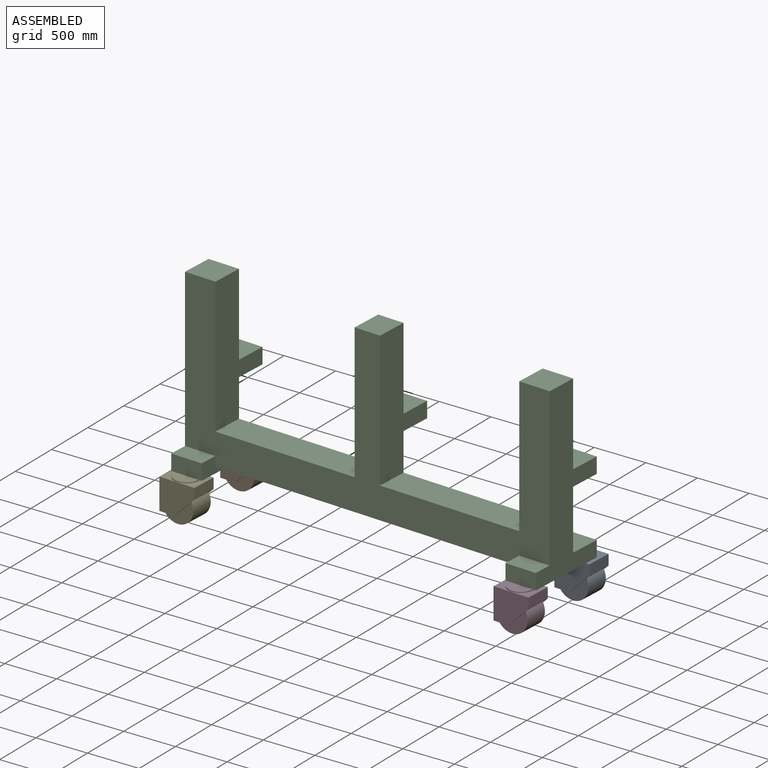
[diagram: assembled view]
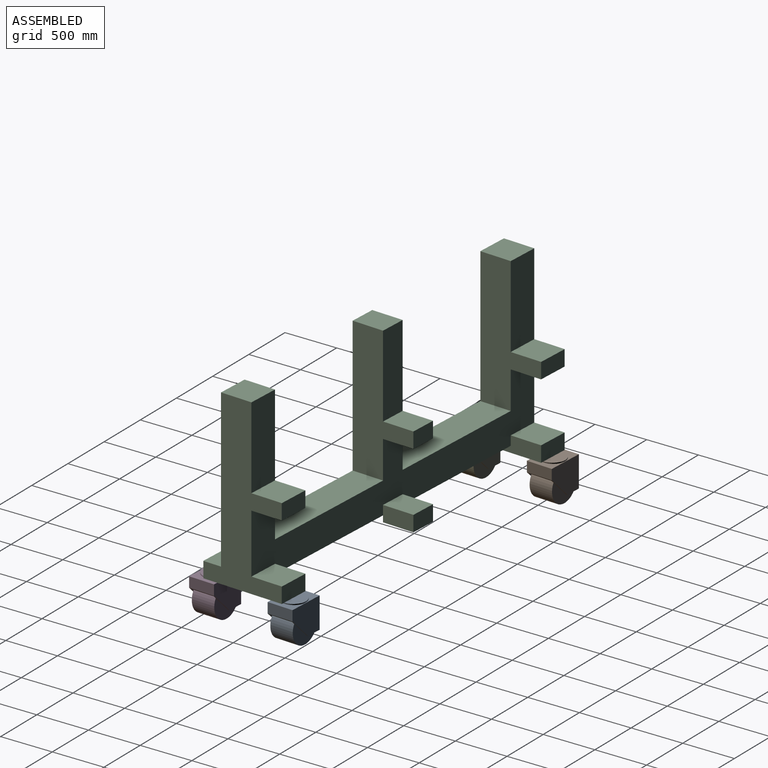
[diagram: assembled view, second angle]
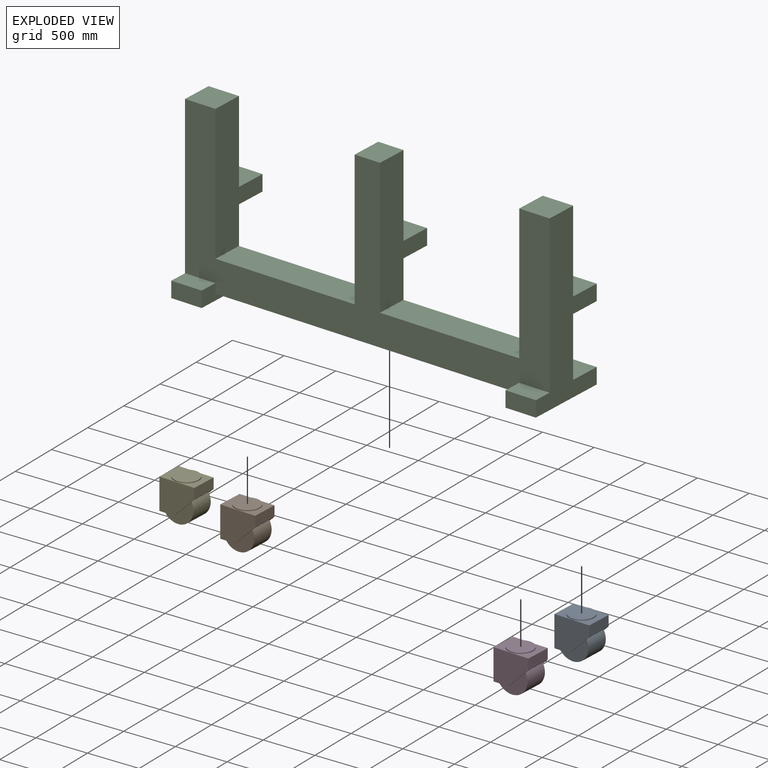
[diagram: exploded view]
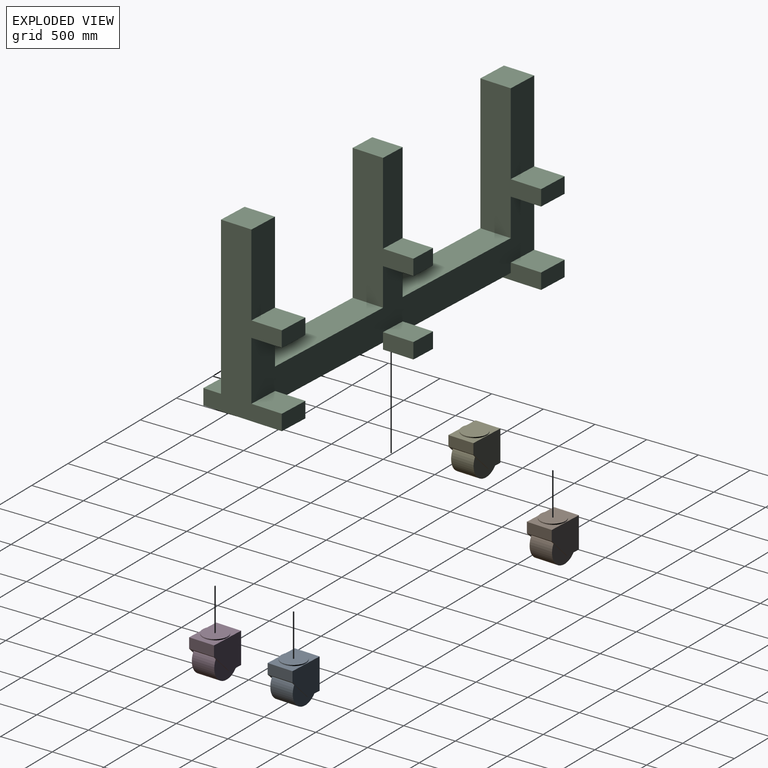
[diagram: exploded view, second angle]
ASSEMBLY  parts=5 mates=4
PART A: 17 faces, bbox 350x250x378.8 mm
  f0: plane 325x287.5mm, normal (0,1,0), area 26670mm2, adj f2,f8,f9,f10,f11,f12
  f1: plane 325x287.5mm, normal (0,-1,0), area 26670mm2, adj f2,f8,f9,f10,f11,f12
  f2: plane 250x150mm, normal (0,0,-1), area 6562.5mm2, adj f0,f1,f5,f6,f7,f10,f11,f13
  f3: plane 250x100mm, normal (1,0,0), area 25000mm2, adj f4,f6,f7,f11
  f4: plane 350x250mm, normal (0,0,1), area 42261.1mm2, adj f3,f5,f6,f7,f15
  f5: plane 300x250mm, normal (-1,0,0), area 75000mm2, adj f2,f4,f6,f7
  f6: plane 350x300mm, normal (0,-1,0), area 85000mm2, adj f2,f3,f4,f5,f11
  f7: plane 350x300mm, normal (0,1,0), area 85000mm2, adj f2,f3,f4,f5,f11
  f8: plane 225x100mm, normal (-1,0,0), area 22500mm2, adj f0,f1,f9,f11
  f9: plane 325x225mm, normal (0,0,-1), area 73125mm2, adj f0,f1,f8,f10
  f10: plane 287.5x225mm, normal (1,0,0), area 64687.5mm2, adj f0,f1,f2,f9
  f11: plane 250x200mm, normal (0.71,0,-0.71), area 11048.5mm2, adj f0,f1,f2,f3,f6,f7,f8,f13
  f12: cylinder r=156.31mm len=312.63mm, axis (0,1,0), area 220982.1mm2, adj f0,f1,f13,f14
  f13: plane 285.84x231.08mm, normal (0,-1,0), area 27571.4mm2, adj f2,f11,f12
  f14: plane 285.84x231.08mm, normal (0,1,0), area 27571.4mm2, adj f2,f11,f12
  f15: cylinder r=120mm len=240mm, axis (0,0,-1), area 7539.8mm2, adj f4,f16
  f16: plane 240x240mm, normal (0,0,1), area 45238.9mm2, adj f15
PART B: same geometry as A
PART C: 44 faces, bbox 3657.6x1676.4x787.4 mm
  f0: plane 3657.6x668.32mm, normal (0,0,-1), area 1349873.6mm2, adj f4,f5,f6,f8,f9,f10,f12,f16
  f1: plane 794.64x304.8mm, normal (0,0,-1), area 242206.4mm2, adj f8,f22,f23,f42
  f2: plane 794.64x254mm, normal (0,0,-1), area 201838.6mm2, adj f24,f25,f26,f39
  f3: plane 794.64x304.8mm, normal (0,0,-1), area 242206.4mm2, adj f9,f27,f28,f36
  f4: plane 1397x304.8mm, normal (0,1,0), area 425805.6mm2, adj f0,f7,f25,f27
  f5: plane 1397x304.8mm, normal (0,1,0), area 425805.6mm2, adj f0,f7,f22,f24
  f6: plane 3048x304.8mm, normal (0,-1,0), area 929030.4mm2, adj f0,f7,f12,f17,f29
  f7: plane 3657.6x1615.36mm, normal (0,0,1), area 2190943.5mm2, adj f4,f5,f6,f8,f9,f12,f15,f17
  f8: plane 1676.4x787.4mm, normal (-1,0,0), area 630966.5mm2, adj f0,f1,f7,f10,f11,f13,f14,f15
  f9: plane 1676.4x787.4mm, normal (1,0,0), area 630966.5mm2, adj f0,f3,f7,f16,f18,f19,f20,f21
  f10: plane 304.8x304.8mm, normal (0,1,0), area 92903mm2, adj f0,f8,f11,f12
  f11: plane 304.8x152.4mm, normal (0,0,-1), area 46451.5mm2, adj f8,f10,f12,f14
  f12: plane 787.4x152.4mm, normal (1,0,0), area 92152.7mm2, adj f0,f6,f7,f10,f11,f13,f14,f15
  f13: plane 304.8x152.4mm, normal (0,0,1), area 46451.5mm2, adj f8,f12,f14,f15
  f14: plane 787.4x304.8mm, normal (0,-1,0), area 239999.5mm2, adj f8,f11,f12,f13
  f15: plane 304.8x177.8mm, normal (0,1,0), area 54193.4mm2, adj f7,f8,f12,f13
  f16: plane 304.8x304.8mm, normal (0,1,0), area 92903mm2, adj f0,f9,f17,f18
  f17: plane 787.4x152.4mm, normal (-1,0,0), area 92152.7mm2, adj f0,f6,f7,f16,f18,f19,f20,f21
  f18: plane 304.8x152.4mm, normal (0,0,-1), area 46451.5mm2, adj f9,f16,f17,f20
  f19: plane 304.8x152.4mm, normal (0,0,1), area 46451.5mm2, adj f9,f17,f20,f21
  f20: plane 787.4x304.8mm, normal (0,-1,0), area 239999.5mm2, adj f9,f17,f18,f19
  f21: plane 304.8x177.8mm, normal (0,1,0), area 54193.4mm2, adj f7,f9,f17,f19
  f22: plane 1310.56x609.6mm, normal (1,0,0), area 445910.7mm2, adj f0,f1,f5,f7,f23,f41,f42,f43
  f23: plane 304.8x304.8mm, normal (0,1,0), area 92903mm2, adj f1,f7,f8,f22
  f24: plane 1310.56x609.6mm, normal (-1,0,0), area 445910.7mm2, adj f0,f2,f5,f7,f26,f38,f39,f40
  f25: plane 1310.56x609.6mm, normal (1,0,0), area 445910.7mm2, adj f0,f2,f4,f7,f26,f38,f39,f40
  f26: plane 304.8x254mm, normal (0,1,0), area 77419.2mm2, adj f2,f7,f24,f25
  f27: plane 1310.56x609.6mm, normal (-1,0,0), area 445910.7mm2, adj f0,f3,f4,f7,f28,f35,f36,f37
  f28: plane 304.8x304.8mm, normal (0,1,0), area 92903mm2, adj f3,f7,f9,f27
  f29: plane 254x61.04mm, normal (0,0,1), area 15503.7mm2, adj f6,f30,f32,f33
  f30: plane 304.8x152.4mm, normal (1,0,0), area 46451.5mm2, adj f0,f29,f31,f33,f34
  f31: plane 304.8x254mm, normal (0,1,0), area 77419.2mm2, adj f0,f30,f32,f34
  f32: plane 304.8x152.4mm, normal (-1,0,0), area 46451.5mm2, adj f0,f29,f31,f33,f34
  f33: plane 304.8x254mm, normal (0,-1,0), area 77419.2mm2, adj f29,f30,f32,f34
  f34: plane 254x152.4mm, normal (0,0,-1), area 38709.6mm2, adj f30,f31,f32,f33
  f35: plane 304.8x304.8mm, normal (0,-1,0), area 92903mm2, adj f0,f9,f27,f37
  f36: plane 304.8x304.8mm, normal (0,1,0), area 92903mm2, adj f3,f9,f27,f37
  f37: plane 304.8x152.4mm, normal (0,0,-1), area 46451.5mm2, adj f9,f27,f35,f36
  f38: plane 304.8x254mm, normal (0,-1,0), area 77419.2mm2, adj f0,f24,f25,f40
  f39: plane 304.8x254mm, normal (0,1,0), area 77419.2mm2, adj f2,f24,f25,f40
  f40: plane 254x152.4mm, normal (0,0,-1), area 38709.6mm2, adj f24,f25,f38,f39
  f41: plane 304.8x304.8mm, normal (0,-1,0), area 92903mm2, adj f0,f8,f22,f43
  f42: plane 304.8x304.8mm, normal (0,1,0), area 92903mm2, adj f1,f8,f22,f43
  f43: plane 304.8x152.4mm, normal (0,0,-1), area 46451.5mm2, adj f8,f22,f41,f42
PART D: same geometry as A
PART E: same geometry as A
PLACE A rot(axis=(0,0,-1),2.8deg) t=(1257.95,-263.81,-635.94)mm
PLACE B rot(axis=(0,0,-1),2.8deg) t=(-2090.83,-99.6,-635.94)mm
PLACE C rot(axis=(1,-0.02,-0.02),90deg) t=(-445.33,-610.6,-323.54)mm
PLACE D rot(axis=(0,0,-1),2.8deg) t=(1219.38,-1050.26,-635.94)mm
PLACE E rot(axis=(0,0,-1),2.8deg) t=(-2129.39,-886.06,-635.94)mm
MATE fastened C.f20 <-> D.f15  axis (0,0,-1) through (1213.26,-1175.11,-475.94)mm
MATE fastened B.f15 <-> C.f14  axis (0,0,1) through (-2096.95,-224.45,-475.94)mm
MATE fastened E.f15 <-> C.f14  axis (0,0,1) through (-2135.51,-1010.91,-475.94)mm
MATE fastened A.f15 <-> C.f20  axis (0,0,1) through (1251.82,-388.66,-475.94)mm
